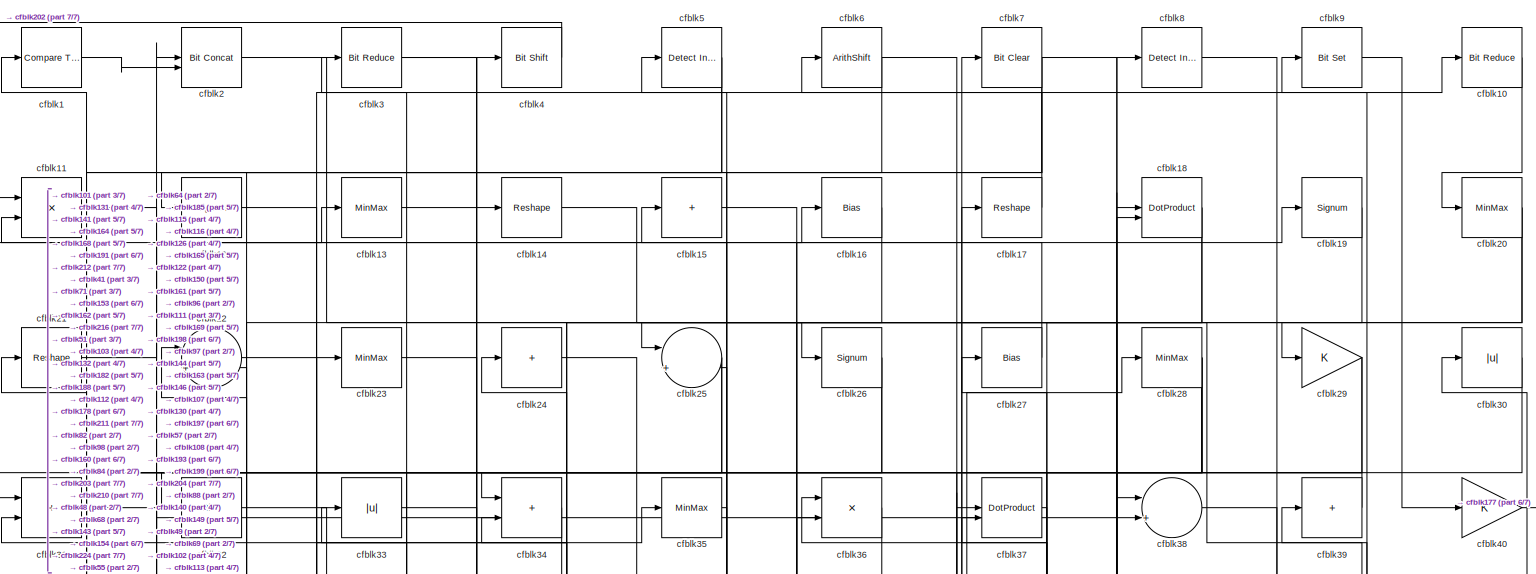
[diagram: root canvas - part 1/7, full width, top band]
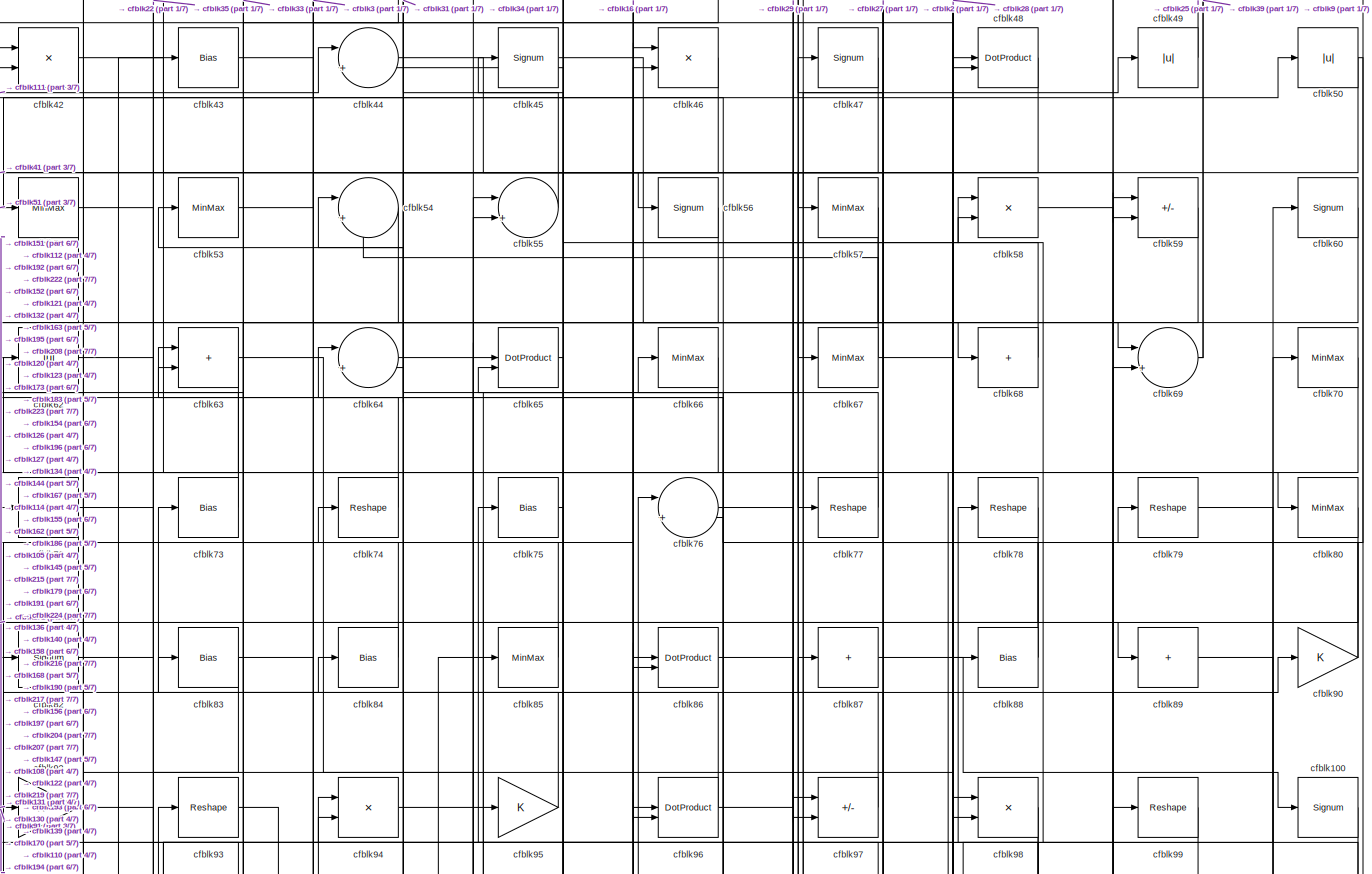
[diagram: root canvas - part 2/7, full width, top band]
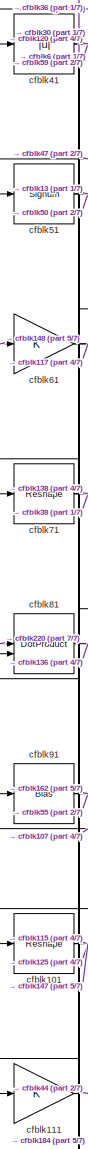
[diagram: root canvas - part 3/7, middle left region]
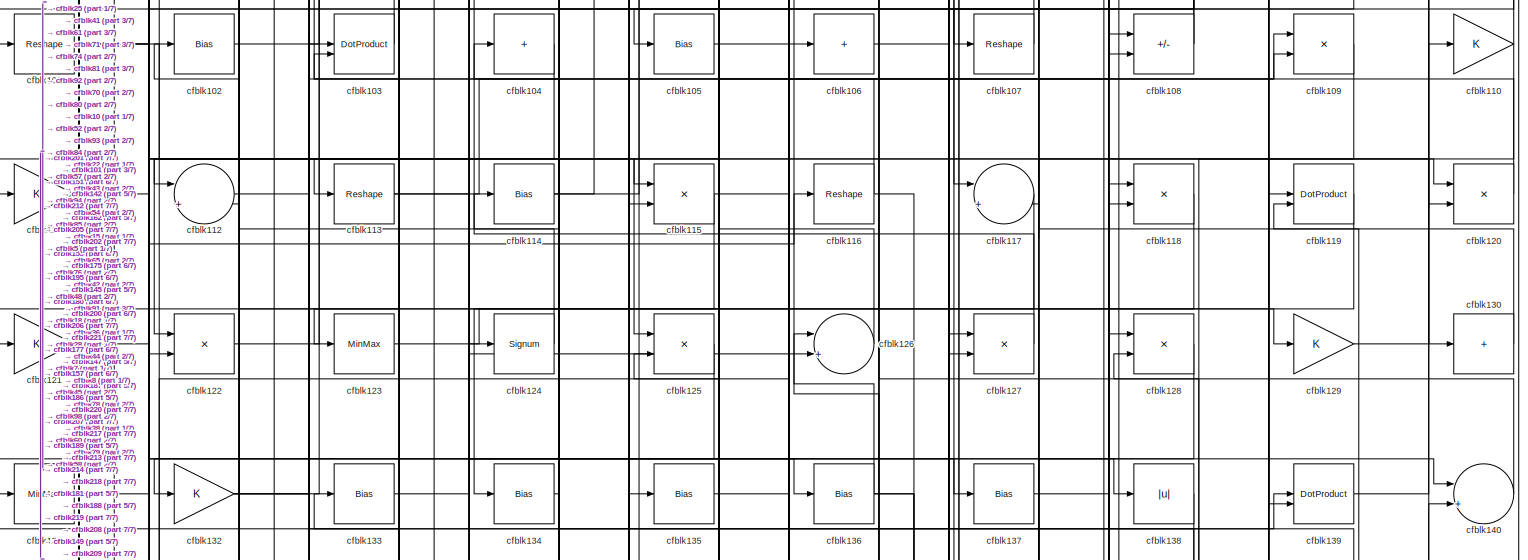
[diagram: root canvas - part 4/7, full width, middle band]
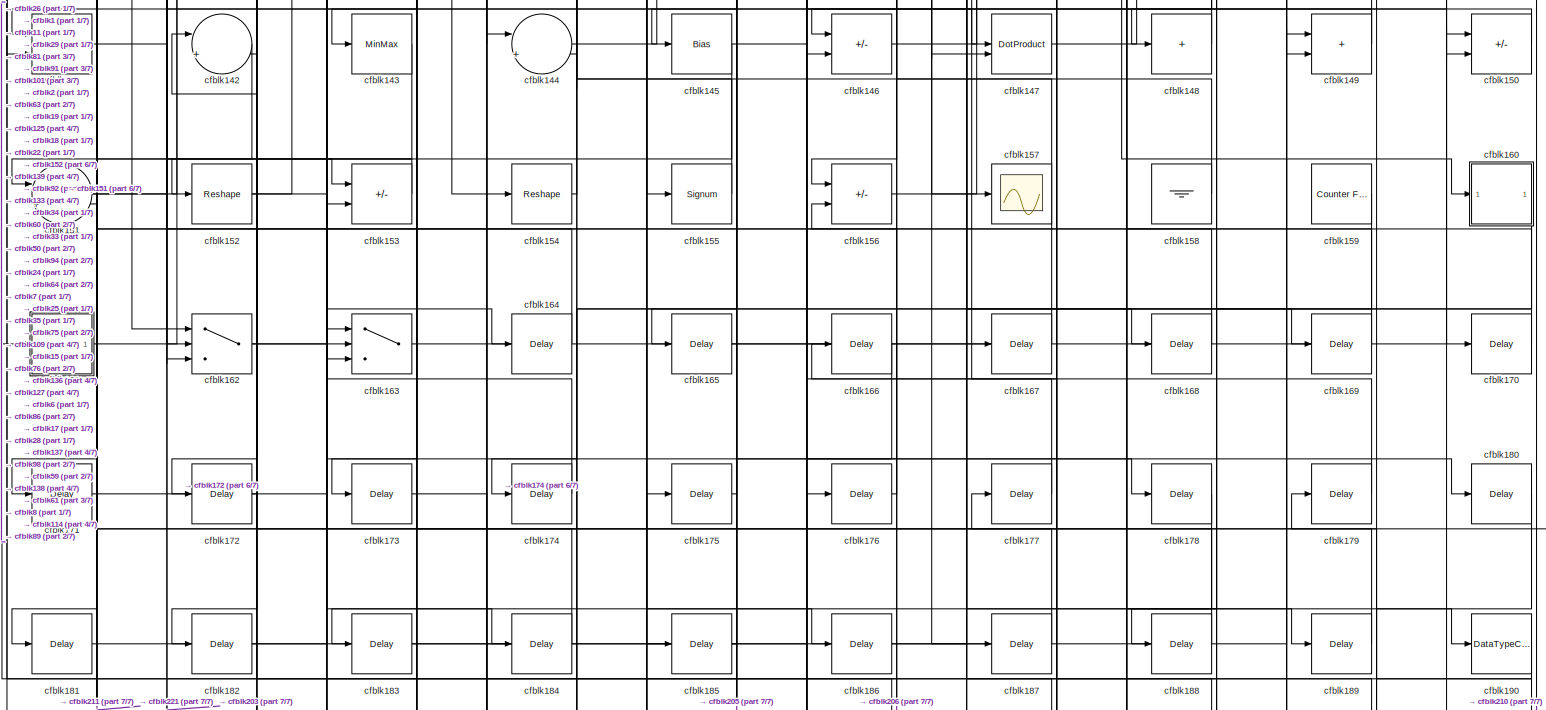
[diagram: root canvas - part 5/7, full width, bottom band]
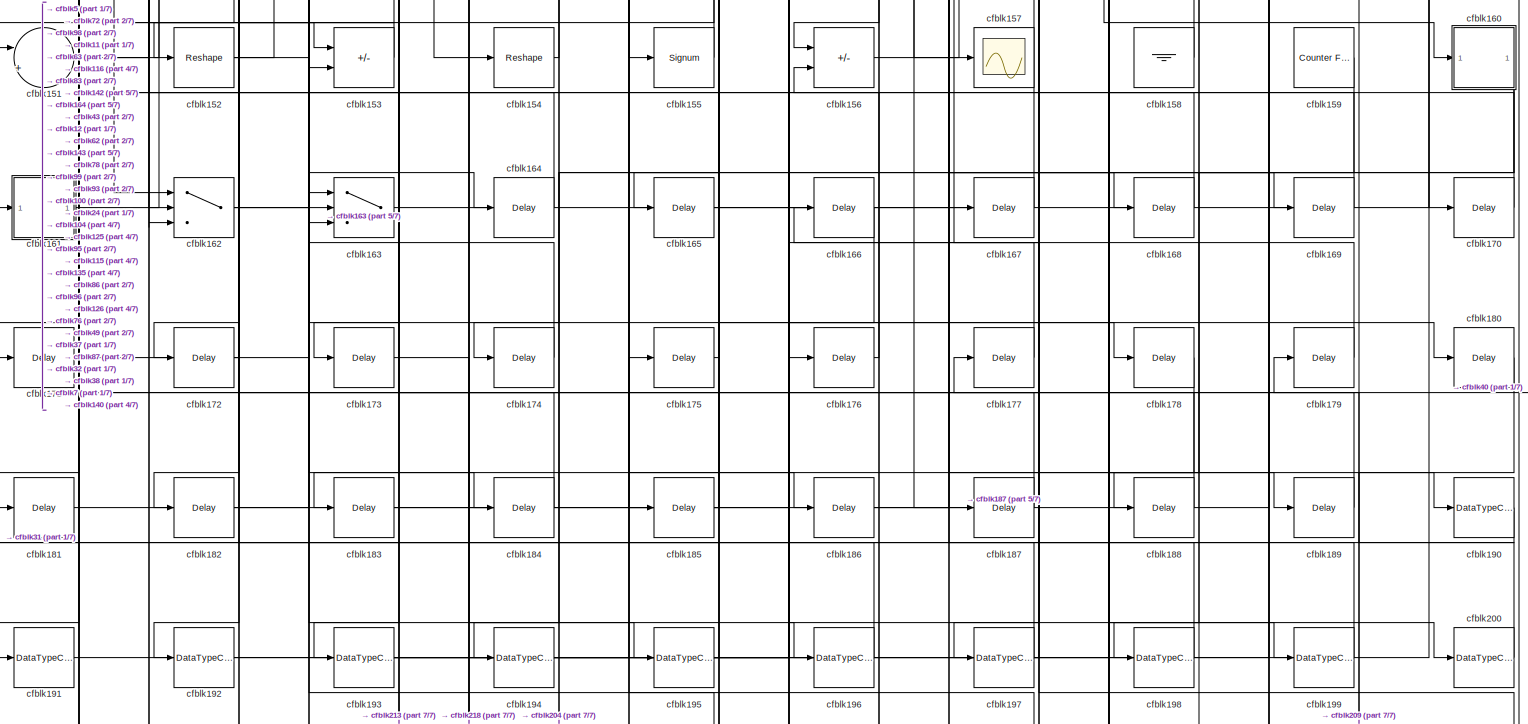
[diagram: root canvas - part 6/7, full width, bottom band]
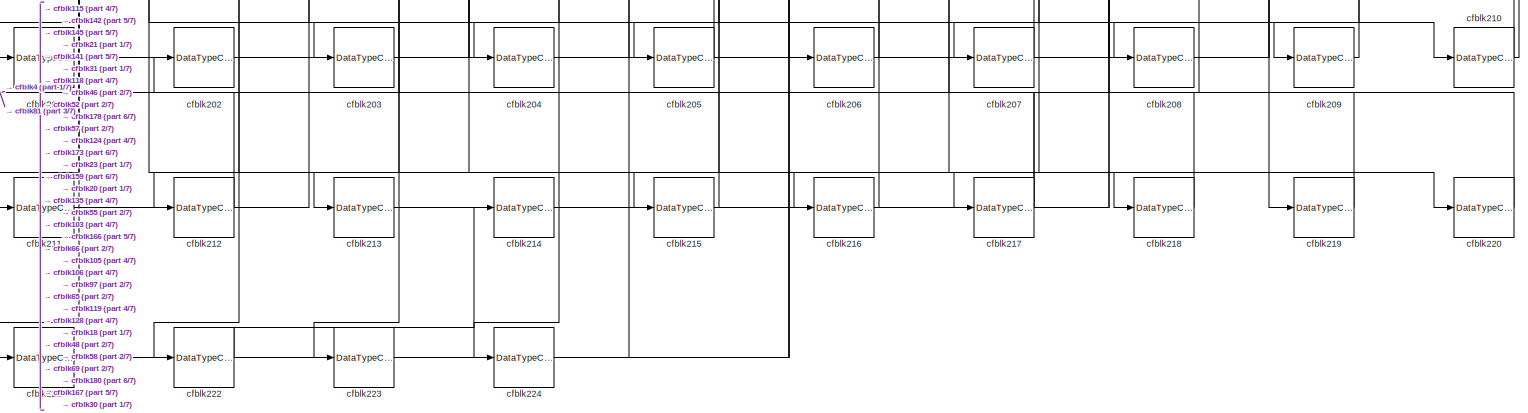
[diagram: root canvas - part 7/7, full width, bottom band]
MODEL slx_2ed837de1205
KIND model
CONFIG AbsTol = auto
CONFIG EnableMultiTasking = off
CONFIG FixedStep = auto
CONFIG MaxStep = auto
CONFIG MinStep = auto
CONFIG RelTol = 1e-3
CONFIG SampleTimeConstraint = Unconstrained
CONFIG SolverName = VariableStepAuto
CONFIG StartTime = 0.0
CONFIG StopTime = 10.0
BLOCK [Reference] cfblk1  REF=hdlsllib/Logic and Bit
Operations/Compare
To Zero
  SourceBlock = hdlsllib/Logic and Bit\nOperations/Compare\nTo Zero
  SourceType = Compare To Zero
BLOCK [Reference] cfblk10  REF=hdlsllib/Logic and Bit
Operations/Bit Reduce
  SourceBlock = hdlsllib/Logic and Bit\nOperations/Bit Reduce
  SourceType = Bit Reduce
BLOCK [Signum] cfblk100
BLOCK [Reshape] cfblk101
BLOCK [Bias] cfblk102
  Bias = 0.0
  SaturateOnIntegerOverflow = off
BLOCK [DotProduct] cfblk103
  OutDataTypeStr = Inherit: Inherit via internal rule
BLOCK [Sum] cfblk104
  IconShape = rectangular
  Inputs = +
BLOCK [Bias] cfblk105
  Bias = 0.0
  SaturateOnIntegerOverflow = off
BLOCK [Sum] cfblk106
  IconShape = rectangular
  Inputs = +
BLOCK [Reshape] cfblk107
BLOCK [Sum] cfblk108
  IconShape = rectangular
  Inputs = +-
BLOCK [Product] cfblk109
  Inputs = */
  RndMeth = Zero
  SaturateOnIntegerOverflow = on
BLOCK [Product] cfblk11
  Inputs = */
  RndMeth = Zero
  SaturateOnIntegerOverflow = on
BLOCK [Gain] cfblk110
BLOCK [Gain] cfblk111
BLOCK [Sum] cfblk112
  Inputs = |++
BLOCK [Reshape] cfblk113
BLOCK [Bias] cfblk114
  Bias = 0.0
  SaturateOnIntegerOverflow = off
BLOCK [Product] cfblk115
  Inputs = */
  RndMeth = Zero
  SaturateOnIntegerOverflow = on
BLOCK [Reshape] cfblk116
BLOCK [Sum] cfblk117
  Inputs = |++
BLOCK [Product] cfblk118
  Inputs = */
  RndMeth = Zero
  SaturateOnIntegerOverflow = on
BLOCK [DotProduct] cfblk119
  OutDataTypeStr = Inherit: Inherit via internal rule
BLOCK [Signum] cfblk12
BLOCK [Product] cfblk120
  Inputs = */
  RndMeth = Zero
  SaturateOnIntegerOverflow = on
BLOCK [Gain] cfblk121
BLOCK [Product] cfblk122
  Inputs = */
  RndMeth = Zero
  SaturateOnIntegerOverflow = on
BLOCK [MinMax] cfblk123
BLOCK [Signum] cfblk124
BLOCK [Product] cfblk125
  Inputs = */
  RndMeth = Zero
  SaturateOnIntegerOverflow = on
BLOCK [Sum] cfblk126
  Inputs = |++
BLOCK [Product] cfblk127
  Inputs = */
  RndMeth = Zero
  SaturateOnIntegerOverflow = on
BLOCK [Product] cfblk128
  Inputs = */
  RndMeth = Zero
  SaturateOnIntegerOverflow = on
BLOCK [Gain] cfblk129
BLOCK [MinMax] cfblk13
BLOCK [Sum] cfblk130
  IconShape = rectangular
  Inputs = +
BLOCK [MinMax] cfblk131
BLOCK [Gain] cfblk132
BLOCK [Bias] cfblk133
  Bias = 0.0
  SaturateOnIntegerOverflow = off
BLOCK [Bias] cfblk134
  Bias = 0.0
  SaturateOnIntegerOverflow = off
BLOCK [Bias] cfblk135
  Bias = 0.0
  SaturateOnIntegerOverflow = off
BLOCK [Bias] cfblk136
  Bias = 0.0
  SaturateOnIntegerOverflow = off
BLOCK [Bias] cfblk137
  Bias = 0.0
  SaturateOnIntegerOverflow = off
BLOCK [Abs] cfblk138
  SaturateOnIntegerOverflow = off
BLOCK [DotProduct] cfblk139
  OutDataTypeStr = Inherit: Inherit via internal rule
BLOCK [Reshape] cfblk14
BLOCK [Sum] cfblk140
  Inputs = |++
BLOCK [Sum] cfblk141
  IconShape = rectangular
BLOCK [Sum] cfblk142
  Inputs = |++
BLOCK [MinMax] cfblk143
BLOCK [Sum] cfblk144
  Inputs = |++
BLOCK [Bias] cfblk145
  Bias = 0.0
  SaturateOnIntegerOverflow = off
BLOCK [Sum] cfblk146
  IconShape = rectangular
  Inputs = +-
BLOCK [DotProduct] cfblk147
  OutDataTypeStr = Inherit: Inherit via internal rule
BLOCK [Sum] cfblk148
  IconShape = rectangular
  Inputs = +
BLOCK [Sum] cfblk149
  IconShape = rectangular
BLOCK [Sum] cfblk15
  IconShape = rectangular
  Inputs = +
BLOCK [Sum] cfblk150
  IconShape = rectangular
  Inputs = +-
BLOCK [Sum] cfblk151
  Inputs = |++
BLOCK [Reshape] cfblk152
BLOCK [Sum] cfblk153
  IconShape = rectangular
  Inputs = +-
BLOCK [Reshape] cfblk154
BLOCK [Signum] cfblk155
BLOCK [Sum] cfblk156
  IconShape = rectangular
  Inputs = +-
BLOCK [Scope] cfblk157
  Floating = off
  NumInputPorts = 1
  ScopeSpecificationString = Simulink.scopes.TimeScopeBlockCfg('CurrentConfiguration', extmgr.ConfigurationSet(extmgr.Configuration('Core','General UI',true),extmgr.Configuration('Core','Source UI',true),extmgr.Configuration('Sources','WiredSimulink',true,'DataLoggingVariableName','ScopeData2','DataLoggingSaveFormat','Array','DataLoggingLimitDataPoints',true,'DataLoggingDecimation','1'),extmgr.Configuration('Visuals','Time Do...<+868ch>
BLOCK [Ground] cfblk158
BLOCK [Reference] cfblk159  REF=hdlsllib/Sources/Counter
Free-Running
  SourceBlock = hdlsllib/Sources/Counter\nFree-Running
  SourceType = Counter Free-Running
BLOCK [Bias] cfblk16
  Bias = 0.0
  SaturateOnIntegerOverflow = off
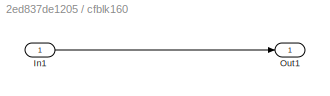
BLOCK [SubSystem] cfblk160
  LibrarySourceBlock = hdlsllib/Ports &\nSubsystems/Subsystem
BLOCK [Inport] cfblk160/In1
BLOCK [Outport] cfblk160/Out1
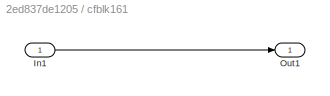
BLOCK [SubSystem] cfblk161
  LibrarySourceBlock = hdlsllib/Ports &\nSubsystems/Subsystem
BLOCK [Inport] cfblk161/In1
BLOCK [Outport] cfblk161/Out1
BLOCK [Switch] cfblk162
  InputSameDT = off
  SaturateOnIntegerOverflow = off
BLOCK [Switch] cfblk163
  InputSameDT = off
  SaturateOnIntegerOverflow = off
BLOCK [Delay] cfblk164
  InputPortMap = u0
  SampleTime = 1
BLOCK [Delay] cfblk165
  InputPortMap = u0
  SampleTime = 1
BLOCK [Delay] cfblk166
  InputPortMap = u0
  SampleTime = 1
BLOCK [Delay] cfblk167
  InputPortMap = u0
  SampleTime = 1
BLOCK [Delay] cfblk168
  InputPortMap = u0
  SampleTime = 1
BLOCK [Delay] cfblk169
  InputPortMap = u0
  SampleTime = 1
BLOCK [Reshape] cfblk17
BLOCK [Delay] cfblk170
  InputPortMap = u0
  SampleTime = 1
BLOCK [Delay] cfblk171
  InputPortMap = u0
  SampleTime = 1
BLOCK [Delay] cfblk172
  InputPortMap = u0
  SampleTime = 1
BLOCK [Delay] cfblk173
  InputPortMap = u0
  SampleTime = 1
BLOCK [Delay] cfblk174
  InputPortMap = u0
  SampleTime = 1
BLOCK [Delay] cfblk175
  InputPortMap = u0
  SampleTime = 1
BLOCK [Delay] cfblk176
  InputPortMap = u0
  SampleTime = 1
BLOCK [Delay] cfblk177
  InputPortMap = u0
  SampleTime = 1
BLOCK [Delay] cfblk178
  InputPortMap = u0
  SampleTime = 1
BLOCK [Delay] cfblk179
  InputPortMap = u0
  SampleTime = 1
BLOCK [DotProduct] cfblk18
  OutDataTypeStr = Inherit: Inherit via internal rule
BLOCK [Delay] cfblk180
  InputPortMap = u0
  SampleTime = 1
BLOCK [Delay] cfblk181
  InputPortMap = u0
  SampleTime = 1
BLOCK [Delay] cfblk182
  InputPortMap = u0
  SampleTime = 1
BLOCK [Delay] cfblk183
  InputPortMap = u0
  SampleTime = 1
BLOCK [Delay] cfblk184
  InputPortMap = u0
  SampleTime = 1
BLOCK [Delay] cfblk185
  InputPortMap = u0
  SampleTime = 1
BLOCK [Delay] cfblk186
  InputPortMap = u0
  SampleTime = 1
BLOCK [Delay] cfblk187
  InputPortMap = u0
  SampleTime = 1
BLOCK [Delay] cfblk188
  InputPortMap = u0
  SampleTime = 1
BLOCK [Delay] cfblk189
  InputPortMap = u0
  SampleTime = 1
BLOCK [Signum] cfblk19
BLOCK [DataTypeConversion] cfblk190
  OutDataTypeStr = uint8
  RndMeth = Floor
  SaturateOnIntegerOverflow = off
BLOCK [DataTypeConversion] cfblk191
  OutDataTypeStr = uint8
  RndMeth = Floor
  SaturateOnIntegerOverflow = off
BLOCK [DataTypeConversion] cfblk192
  OutDataTypeStr = uint8
  RndMeth = Floor
  SaturateOnIntegerOverflow = off
BLOCK [DataTypeConversion] cfblk193
  RndMeth = Floor
  SaturateOnIntegerOverflow = off
BLOCK [DataTypeConversion] cfblk194
  OutDataTypeStr = uint8
  RndMeth = Floor
  SaturateOnIntegerOverflow = off
BLOCK [DataTypeConversion] cfblk195
  RndMeth = Floor
  SaturateOnIntegerOverflow = off
BLOCK [DataTypeConversion] cfblk196
  OutDataTypeStr = uint8
  RndMeth = Floor
  SaturateOnIntegerOverflow = off
BLOCK [DataTypeConversion] cfblk197
  RndMeth = Floor
  SaturateOnIntegerOverflow = off
BLOCK [DataTypeConversion] cfblk198
  OutDataTypeStr = uint8
  RndMeth = Floor
  SaturateOnIntegerOverflow = off
BLOCK [DataTypeConversion] cfblk199
  OutDataTypeStr = uint8
  RndMeth = Floor
  SaturateOnIntegerOverflow = off
BLOCK [Reference] cfblk2  REF=hdlsllib/Logic and Bit
Operations/Bit Concat
  SourceBlock = hdlsllib/Logic and Bit\nOperations/Bit Concat
  SourceType = Bit Concat
BLOCK [MinMax] cfblk20
BLOCK [DataTypeConversion] cfblk200
  OutDataTypeStr = uint8
  RndMeth = Floor
  SaturateOnIntegerOverflow = off
BLOCK [DataTypeConversion] cfblk201
  OutDataTypeStr = uint8
  RndMeth = Floor
  SaturateOnIntegerOverflow = off
BLOCK [DataTypeConversion] cfblk202
  OutDataTypeStr = uint8
  RndMeth = Floor
  SaturateOnIntegerOverflow = off
BLOCK [DataTypeConversion] cfblk203
  OutDataTypeStr = uint8
  RndMeth = Floor
  SaturateOnIntegerOverflow = off
BLOCK [DataTypeConversion] cfblk204
  RndMeth = Floor
  SaturateOnIntegerOverflow = off
BLOCK [DataTypeConversion] cfblk205
  OutDataTypeStr = uint8
  RndMeth = Floor
  SaturateOnIntegerOverflow = off
BLOCK [DataTypeConversion] cfblk206
  OutDataTypeStr = uint8
  RndMeth = Floor
  SaturateOnIntegerOverflow = off
BLOCK [DataTypeConversion] cfblk207
  RndMeth = Floor
  SaturateOnIntegerOverflow = off
BLOCK [DataTypeConversion] cfblk208
  OutDataTypeStr = uint8
  RndMeth = Floor
  SaturateOnIntegerOverflow = off
BLOCK [DataTypeConversion] cfblk209
  OutDataTypeStr = uint8
  RndMeth = Floor
  SaturateOnIntegerOverflow = off
BLOCK [Reshape] cfblk21
BLOCK [DataTypeConversion] cfblk210
  RndMeth = Floor
  SaturateOnIntegerOverflow = off
BLOCK [DataTypeConversion] cfblk211
  OutDataTypeStr = uint8
  RndMeth = Floor
  SaturateOnIntegerOverflow = off
BLOCK [DataTypeConversion] cfblk212
  OutDataTypeStr = uint8
  RndMeth = Floor
  SaturateOnIntegerOverflow = off
BLOCK [DataTypeConversion] cfblk213
  OutDataTypeStr = uint8
  RndMeth = Floor
  SaturateOnIntegerOverflow = off
BLOCK [DataTypeConversion] cfblk214
  OutDataTypeStr = uint8
  RndMeth = Floor
  SaturateOnIntegerOverflow = off
BLOCK [DataTypeConversion] cfblk215
  OutDataTypeStr = uint8
  RndMeth = Floor
  SaturateOnIntegerOverflow = off
BLOCK [DataTypeConversion] cfblk216
  OutDataTypeStr = uint8
  RndMeth = Floor
  SaturateOnIntegerOverflow = off
BLOCK [DataTypeConversion] cfblk217
  RndMeth = Floor
  SaturateOnIntegerOverflow = off
BLOCK [DataTypeConversion] cfblk218
  OutDataTypeStr = uint8
  RndMeth = Floor
  SaturateOnIntegerOverflow = off
BLOCK [DataTypeConversion] cfblk219
  OutDataTypeStr = uint8
  RndMeth = Floor
  SaturateOnIntegerOverflow = off
BLOCK [Sum] cfblk22
  Inputs = |++
BLOCK [DataTypeConversion] cfblk220
  OutDataTypeStr = uint8
  RndMeth = Floor
  SaturateOnIntegerOverflow = off
BLOCK [DataTypeConversion] cfblk221
  OutDataTypeStr = uint8
  RndMeth = Floor
  SaturateOnIntegerOverflow = off
BLOCK [DataTypeConversion] cfblk222
  RndMeth = Floor
  SaturateOnIntegerOverflow = off
BLOCK [DataTypeConversion] cfblk223
  OutDataTypeStr = uint8
  RndMeth = Floor
  SaturateOnIntegerOverflow = off
BLOCK [DataTypeConversion] cfblk224
  OutDataTypeStr = uint8
  RndMeth = Floor
  SaturateOnIntegerOverflow = off
BLOCK [MinMax] cfblk23
BLOCK [Sum] cfblk24
  IconShape = rectangular
  Inputs = +
BLOCK [Sum] cfblk25
  Inputs = |++
BLOCK [Signum] cfblk26
BLOCK [Bias] cfblk27
  Bias = 0.0
  SaturateOnIntegerOverflow = off
BLOCK [MinMax] cfblk28
BLOCK [Gain] cfblk29
BLOCK [Reference] cfblk3  REF=hdlsllib/Logic and Bit
Operations/Bit Reduce
  SourceBlock = hdlsllib/Logic and Bit\nOperations/Bit Reduce
  SourceType = Bit Reduce
BLOCK [Abs] cfblk30
  SaturateOnIntegerOverflow = off
BLOCK [Sum] cfblk31
  IconShape = rectangular
BLOCK [Bias] cfblk32
  Bias = 0.0
  SaturateOnIntegerOverflow = off
BLOCK [Abs] cfblk33
  SaturateOnIntegerOverflow = off
BLOCK [Sum] cfblk34
  IconShape = rectangular
BLOCK [MinMax] cfblk35
BLOCK [Product] cfblk36
  Inputs = */
  RndMeth = Zero
  SaturateOnIntegerOverflow = on
BLOCK [DotProduct] cfblk37
  OutDataTypeStr = Inherit: Inherit via internal rule
BLOCK [Sum] cfblk38
  Inputs = |++
BLOCK [Sum] cfblk39
  IconShape = rectangular
  Inputs = +
BLOCK [Reference] cfblk4  REF=hdlsllib/Logic and Bit
Operations/Bit Shift
  SourceBlock = hdlsllib/Logic and Bit\nOperations/Bit Shift
  SourceType = Bit Shift
BLOCK [Gain] cfblk40
BLOCK [Abs] cfblk41
  SaturateOnIntegerOverflow = off
BLOCK [Product] cfblk42
  Inputs = */
  RndMeth = Zero
  SaturateOnIntegerOverflow = on
BLOCK [Bias] cfblk43
  Bias = 0.0
  SaturateOnIntegerOverflow = off
BLOCK [Sum] cfblk44
  Inputs = |++
BLOCK [Signum] cfblk45
BLOCK [Product] cfblk46
  Inputs = */
  RndMeth = Zero
  SaturateOnIntegerOverflow = on
BLOCK [Signum] cfblk47
BLOCK [DotProduct] cfblk48
  OutDataTypeStr = Inherit: Inherit via internal rule
BLOCK [Abs] cfblk49
  SaturateOnIntegerOverflow = off
BLOCK [Reference] cfblk5  REF=simulink/Logic and Bit
Operations/Detect
Increase
  LibrarySourceBlock = hdlsllib/Logic and Bit\nOperations/Detect\nIncrease
  SourceBlock = simulink/Logic and Bit\nOperations/Detect\nIncrease
  SourceType = Detect Increase
BLOCK [Abs] cfblk50
  SaturateOnIntegerOverflow = off
BLOCK [Signum] cfblk51
BLOCK [MinMax] cfblk52
BLOCK [MinMax] cfblk53
BLOCK [Sum] cfblk54
  Inputs = |++
BLOCK [Sum] cfblk55
  Inputs = |++
BLOCK [Signum] cfblk56
BLOCK [MinMax] cfblk57
BLOCK [Product] cfblk58
  Inputs = */
  RndMeth = Zero
  SaturateOnIntegerOverflow = on
BLOCK [Sum] cfblk59
  IconShape = rectangular
  Inputs = +-
BLOCK [ArithShift] cfblk6
  BitShiftNumber = 8
  InputPortMap = u0
BLOCK [Signum] cfblk60
BLOCK [Gain] cfblk61
BLOCK [Abs] cfblk62
  SaturateOnIntegerOverflow = off
BLOCK [Sum] cfblk63
  IconShape = rectangular
BLOCK [Sum] cfblk64
  Inputs = |++
BLOCK [DotProduct] cfblk65
  OutDataTypeStr = Inherit: Inherit via internal rule
BLOCK [MinMax] cfblk66
BLOCK [MinMax] cfblk67
BLOCK [Sum] cfblk68
  IconShape = rectangular
  Inputs = +
BLOCK [Sum] cfblk69
  Inputs = |++
BLOCK [Reference] cfblk7  REF=simulink/Logic and Bit
Operations/Bit Clear
  LibrarySourceBlock = hdlsllib/Logic and Bit\nOperations/Bit Clear
  SourceBlock = simulink/Logic and Bit\nOperations/Bit Clear
  SourceType = Bit Clear
BLOCK [MinMax] cfblk70
BLOCK [Reshape] cfblk71
BLOCK [Bias] cfblk72
  Bias = 0.0
  SaturateOnIntegerOverflow = off
BLOCK [Bias] cfblk73
  Bias = 0.0
  SaturateOnIntegerOverflow = off
BLOCK [Reshape] cfblk74
BLOCK [Bias] cfblk75
  Bias = 0.0
  SaturateOnIntegerOverflow = off
BLOCK [Sum] cfblk76
  Inputs = |++
BLOCK [Reshape] cfblk77
BLOCK [Reshape] cfblk78
BLOCK [Reshape] cfblk79
BLOCK [Reference] cfblk8  REF=simulink/Logic and Bit
Operations/Detect
Increase
  LibrarySourceBlock = hdlsllib/Logic and Bit\nOperations/Detect\nIncrease
  SourceBlock = simulink/Logic and Bit\nOperations/Detect\nIncrease
  SourceType = Detect Increase
BLOCK [MinMax] cfblk80
BLOCK [DotProduct] cfblk81
  OutDataTypeStr = Inherit: Inherit via internal rule
BLOCK [Signum] cfblk82
BLOCK [Bias] cfblk83
  Bias = 0.0
  SaturateOnIntegerOverflow = off
BLOCK [Bias] cfblk84
  Bias = 0.0
  SaturateOnIntegerOverflow = off
BLOCK [MinMax] cfblk85
BLOCK [DotProduct] cfblk86
  OutDataTypeStr = Inherit: Inherit via internal rule
BLOCK [Sum] cfblk87
  IconShape = rectangular
  Inputs = +
BLOCK [Bias] cfblk88
  Bias = 0.0
  SaturateOnIntegerOverflow = off
BLOCK [Sum] cfblk89
  IconShape = rectangular
  Inputs = +
BLOCK [Reference] cfblk9  REF=simulink/Logic and Bit
Operations/Bit Set
  LibrarySourceBlock = hdlsllib/Logic and Bit\nOperations/Bit Set
  SourceBlock = simulink/Logic and Bit\nOperations/Bit Set
  SourceType = Bit Set
BLOCK [Gain] cfblk90
BLOCK [Bias] cfblk91
  Bias = 0.0
  SaturateOnIntegerOverflow = off
BLOCK [Gain] cfblk92
BLOCK [Reshape] cfblk93
BLOCK [Product] cfblk94
  Inputs = */
  RndMeth = Zero
  SaturateOnIntegerOverflow = on
BLOCK [Gain] cfblk95
BLOCK [DotProduct] cfblk96
  OutDataTypeStr = Inherit: Inherit via internal rule
BLOCK [Sum] cfblk97
  IconShape = rectangular
  Inputs = +-
BLOCK [Product] cfblk98
  Inputs = */
  RndMeth = Zero
  SaturateOnIntegerOverflow = on
BLOCK [Reshape] cfblk99
LINE cfblk100:1 -> cfblk194:1
NET cfblk101:1 -> cfblk115:2, cfblk125:1, cfblk147:1
LINE cfblk102:1 -> cfblk18:1
LINE cfblk103:1 -> cfblk22:1
LINE cfblk104:1 -> cfblk122:1
LINE cfblk105:1 -> cfblk206:1
LINE cfblk106:1 -> cfblk220:1
LINE cfblk107:1 -> cfblk91:1
NET cfblk108:1 -> cfblk45:1, cfblk78:1
LINE cfblk109:1 -> cfblk188:1
LINE cfblk10:1 -> cfblk20:1
NET cfblk110:1 -> cfblk117:2, cfblk58:1
LINE cfblk111:1 -> cfblk44:1
LINE cfblk112:1 -> cfblk10:1
NET cfblk113:1 -> cfblk139:2, cfblk8:1
NET cfblk114:1 -> cfblk58:2, cfblk85:1
NET cfblk115:1 -> cfblk180:1, cfblk201:1
NET cfblk116:1 -> cfblk157:1, cfblk5:1
LINE cfblk117:1 -> cfblk134:1
LINE cfblk118:1 -> cfblk212:1
LINE cfblk119:1 -> cfblk207:1
LINE cfblk11:1 -> cfblk153:1
LINE cfblk120:1 -> cfblk93:1
LINE cfblk121:1 -> cfblk74:1
LINE cfblk122:1 -> cfblk36:2
LINE cfblk123:1 -> cfblk129:1
LINE cfblk124:1 -> cfblk102:1
LINE cfblk125:1 -> cfblk142:2
LINE cfblk126:1 -> cfblk15:1
LINE cfblk127:1 -> cfblk94:1
LINE cfblk128:1 -> cfblk217:1
LINE cfblk129:1 -> cfblk110:1
LINE cfblk12:1 -> cfblk178:1
LINE cfblk130:1 -> cfblk36:1
LINE cfblk131:1 -> cfblk92:1
NET cfblk132:1 -> cfblk109:2, cfblk70:1, cfblk84:1
LINE cfblk133:1 -> cfblk137:1
LINE cfblk134:1 -> cfblk54:1
LINE cfblk135:1 -> cfblk200:1
NET cfblk136:1 -> cfblk147:2, cfblk187:1, cfblk76:1
LINE cfblk137:1 -> cfblk189:1
LINE cfblk138:1 -> cfblk181:1
LINE cfblk139:1 -> cfblk60:1
LINE cfblk13:1 -> cfblk14:1
LINE cfblk140:1 -> cfblk42:2
LINE cfblk141:1 -> cfblk203:1
LINE cfblk142:1 -> cfblk221:1
LINE cfblk143:1 -> cfblk172:1
LINE cfblk144:1 -> cfblk7:1
NET cfblk145:1 -> cfblk109:1, cfblk211:1
LINE cfblk146:1 -> cfblk28:1
LINE cfblk147:1 -> cfblk59:1
LINE cfblk148:1 -> cfblk61:1
NET cfblk149:1 -> cfblk114:1, cfblk148:1
LINE cfblk14:1 -> cfblk26:1
LINE cfblk150:1 -> cfblk146:1
NET cfblk151:1 -> cfblk116:1, cfblk83:1
NET cfblk152:1 -> cfblk164:1, cfblk43:1
LINE cfblk153:1 -> cfblk152:1
LINE cfblk154:1 -> cfblk24:1
LINE cfblk155:1 -> cfblk104:1
LINE cfblk156:1 -> cfblk49:1
LINE cfblk158:1 -> cfblk76:2
LINE cfblk159:1 -> cfblk204:1
LINE cfblk15:1 -> cfblk150:2
LINE cfblk160/In1:1 -> cfblk160/Out1:1
NET cfblk160:1 -> cfblk174:1, cfblk198:1
LINE cfblk161/In1:1 -> cfblk161/Out1:1
LINE cfblk161:1 -> cfblk19:1
NET cfblk162:1 -> cfblk139:1, cfblk184:1
LINE cfblk163:1 -> cfblk17:1
LINE cfblk164:1 -> cfblk11:1
LINE cfblk165:1 -> cfblk150:1
LINE cfblk166:1 -> cfblk205:1
LINE cfblk167:1 -> cfblk94:2
LINE cfblk168:1 -> cfblk1:1
LINE cfblk169:1 -> cfblk2:1
LINE cfblk16:1 -> cfblk96:2
LINE cfblk170:1 -> cfblk98:1
LINE cfblk171:1 -> cfblk153:2
LINE cfblk172:1 -> cfblk142:1
LINE cfblk173:1 -> cfblk218:1
LINE cfblk174:1 -> cfblk163:2
LINE cfblk175:1 -> cfblk125:2
LINE cfblk176:1 -> cfblk156:2
LINE cfblk177:1 -> cfblk126:1
LINE cfblk178:1 -> cfblk213:1
LINE cfblk179:1 -> cfblk96:1
LINE cfblk17:1 -> cfblk6:1
LINE cfblk180:1 -> cfblk209:1
LINE cfblk181:1 -> cfblk163:1
LINE cfblk182:1 -> cfblk149:1
LINE cfblk183:1 -> cfblk146:2
LINE cfblk184:1 -> cfblk81:2
LINE cfblk185:1 -> cfblk25:2
LINE cfblk186:1 -> cfblk127:1
LINE cfblk187:1 -> cfblk151:2
LINE cfblk188:1 -> cfblk22:2
LINE cfblk189:1 -> cfblk133:1
NET cfblk18:1 -> cfblk107:1, cfblk182:1
LINE cfblk190:1 -> cfblk161:1
LINE cfblk191:1 -> cfblk86:1
LINE cfblk192:1 -> cfblk86:2
NET cfblk193:1 -> cfblk175:1, cfblk176:1, cfblk38:1
LINE cfblk194:1 -> cfblk99:1
NET cfblk195:1 -> cfblk140:2, cfblk95:1
LINE cfblk196:1 -> cfblk62:1
NET cfblk197:1 -> cfblk31:1, cfblk87:1
LINE cfblk198:1 -> cfblk37:1
LINE cfblk199:1 -> cfblk37:2
LINE cfblk19:1 -> cfblk29:1
LINE cfblk1:1 -> cfblk2:2
LINE cfblk200:1 -> cfblk179:1
LINE cfblk201:1 -> cfblk135:1
LINE cfblk202:1 -> cfblk124:1
LINE cfblk203:1 -> cfblk4:1
NET cfblk204:1 -> cfblk18:2, cfblk69:2
LINE cfblk205:1 -> cfblk103:1
LINE cfblk206:1 -> cfblk166:1
NET cfblk207:1 -> cfblk48:1, cfblk65:1
LINE cfblk208:1 -> cfblk119:1
LINE cfblk209:1 -> cfblk119:2
NET cfblk20:1 -> cfblk224:1, cfblk34:1
NET cfblk210:1 -> cfblk167:1, cfblk30:1
LINE cfblk211:1 -> cfblk23:1
LINE cfblk212:1 -> cfblk21:1
LINE cfblk213:1 -> cfblk118:1
LINE cfblk214:1 -> cfblk118:2
LINE cfblk215:1 -> cfblk65:2
LINE cfblk216:1 -> cfblk66:1
NET cfblk217:1 -> cfblk103:2, cfblk97:1
LINE cfblk218:1 -> cfblk128:1
LINE cfblk219:1 -> cfblk128:2
LINE cfblk21:1 -> cfblk16:1
LINE cfblk220:1 -> cfblk81:1
LINE cfblk221:1 -> cfblk106:1
NET cfblk222:1 -> cfblk214:1, cfblk55:1
LINE cfblk223:1 -> cfblk46:1
LINE cfblk224:1 -> cfblk46:2
LINE cfblk22:1 -> cfblk98:2
LINE cfblk23:1 -> cfblk210:1
LINE cfblk24:1 -> cfblk185:1
NET cfblk25:1 -> cfblk131:1, cfblk64:2
NET cfblk26:1 -> cfblk141:2, cfblk71:1
LINE cfblk27:1 -> cfblk11:2
NET cfblk28:1 -> cfblk108:2, cfblk113:1, cfblk162:3, cfblk57:1
NET cfblk29:1 -> cfblk141:1, cfblk97:2
LINE cfblk2:1 -> cfblk88:1
LINE cfblk30:1 -> cfblk101:1
LINE cfblk31:1 -> cfblk216:1
LINE cfblk32:1 -> cfblk160:1
LINE cfblk33:1 -> cfblk144:1
LINE cfblk34:1 -> cfblk143:1
LINE cfblk35:1 -> cfblk165:1
LINE cfblk36:1 -> cfblk111:1
LINE cfblk37:1 -> cfblk197:1
LINE cfblk38:1 -> cfblk140:1
LINE cfblk39:1 -> cfblk32:1
NET cfblk3:1 -> cfblk48:2, cfblk68:1
LINE cfblk40:1 -> cfblk177:1
NET cfblk41:1 -> cfblk120:2, cfblk59:2
LINE cfblk42:1 -> cfblk77:1
LINE cfblk43:1 -> cfblk126:2
LINE cfblk44:1 -> cfblk108:1
LINE cfblk45:1 -> cfblk69:1
LINE cfblk46:1 -> cfblk222:1
LINE cfblk47:1 -> cfblk51:1
LINE cfblk48:1 -> cfblk127:2
LINE cfblk49:1 -> cfblk25:1
LINE cfblk4:1 -> cfblk202:1
NET cfblk50:1 -> cfblk144:2, cfblk79:1
NET cfblk51:1 -> cfblk13:1, cfblk50:1
NET cfblk52:1 -> cfblk121:1, cfblk208:1
LINE cfblk53:1 -> cfblk56:1
LINE cfblk54:1 -> cfblk72:1
LINE cfblk55:1 -> cfblk31:2
LINE cfblk56:1 -> cfblk82:1
NET cfblk57:1 -> cfblk123:1, cfblk223:1
LINE cfblk58:1 -> cfblk219:1
LINE cfblk59:1 -> cfblk67:1
NET cfblk5:1 -> cfblk132:1, cfblk191:1
LINE cfblk60:1 -> cfblk183:1
NET cfblk61:1 -> cfblk117:1, cfblk120:1
LINE cfblk62:1 -> cfblk195:1
NET cfblk63:1 -> cfblk155:1, cfblk162:2
LINE cfblk64:1 -> cfblk186:1
LINE cfblk65:1 -> cfblk105:1
LINE cfblk66:1 -> cfblk215:1
NET cfblk67:1 -> cfblk54:2, cfblk80:1
LINE cfblk68:1 -> cfblk44:2
NET cfblk69:1 -> cfblk39:1, cfblk9:1
NET cfblk6:1 -> cfblk169:1, cfblk41:1
LINE cfblk70:1 -> cfblk112:1
NET cfblk71:1 -> cfblk138:1, cfblk38:2
NET cfblk72:1 -> cfblk171:1, cfblk89:1
LINE cfblk73:1 -> cfblk52:1
LINE cfblk74:1 -> cfblk42:1
LINE cfblk75:1 -> cfblk145:1
NET cfblk76:1 -> cfblk156:1, cfblk168:1
LINE cfblk77:1 -> cfblk53:1
LINE cfblk78:1 -> cfblk173:1
LINE cfblk79:1 -> cfblk130:1
NET cfblk7:1 -> cfblk115:1, cfblk12:1, cfblk199:1
LINE cfblk80:1 -> cfblk112:2
LINE cfblk81:1 -> cfblk136:1
LINE cfblk82:1 -> cfblk35:1
NET cfblk83:1 -> cfblk192:1, cfblk196:1
LINE cfblk84:1 -> cfblk33:1
LINE cfblk85:1 -> cfblk63:1
LINE cfblk86:1 -> cfblk190:1
LINE cfblk87:1 -> cfblk100:1
NET cfblk88:1 -> cfblk27:1, cfblk64:1
LINE cfblk89:1 -> cfblk170:1
LINE cfblk8:1 -> cfblk149:2
NET cfblk90:1 -> cfblk47:1, cfblk63:2
NET cfblk91:1 -> cfblk162:1, cfblk55:2
LINE cfblk92:1 -> cfblk163:3
LINE cfblk93:1 -> cfblk154:1
LINE cfblk94:1 -> cfblk75:1
LINE cfblk95:1 -> cfblk73:1
NET cfblk96:1 -> cfblk34:2, cfblk90:1
LINE cfblk97:1 -> cfblk3:1
NET cfblk98:1 -> cfblk122:2, cfblk151:1
LINE cfblk99:1 -> cfblk193:1
LINE cfblk9:1 -> cfblk40:1
note: NET lines group one-source signal fan-out (src -> all destinations, sorted); 1:1 wires keep LINE
